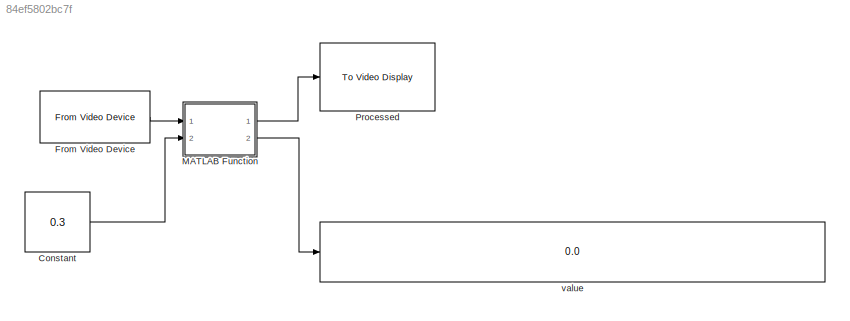
MODEL slx_84ef5802bc7f
KIND model
CONFIG AbsTol = auto
CONFIG FixedStep = auto
CONFIG MaxStep = auto
CONFIG MinStep = auto
CONFIG RelTol = 1e-3
CONFIG SampleTimeConstraint = Unconstrained
CONFIG Solver = VariableStepAuto
CONFIG SolverMode = Auto
CONFIG SolverName = VariableStepAuto
CONFIG StartTime = 0.0
CONFIG StopTime = inf
BLOCK [Constant] Constant
  OutDataTypeStr = double
  SampleTime = 100000
  Value = 0.3
BLOCK [Reference] From Video Device  REF=imaqlib/From Video Device
  Ports = [0, 1]
  SourceBlock = imaqlib/From Video Device
  SourceType = From Video Device
  UserDataPersistent = on
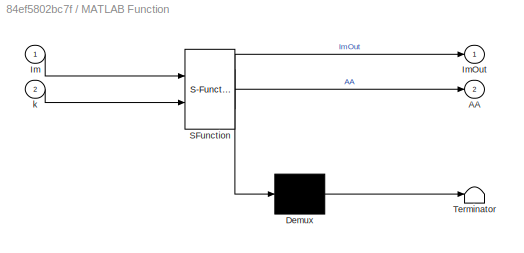
BLOCK [SubSystem] MATLAB Function
  ErrorFcn = Stateflow.Translate.translate
  PermitHierarchicalResolution = ExplicitOnly
  Ports = [2, 2]
  RequestExecContextInheritance = off
  SFBlockType = MATLAB Function
  TreatAsAtomicUnit = on
  Variant = off
BLOCK [Demux] MATLAB Function/ Demux 
  Outputs = 1
  Ports = [1, 1]
BLOCK [S-Function] MATLAB Function/ SFunction 
  EnableBusSupport = on
  FunctionName = sf_sfun
  PortCounts = [2 3]
  Ports = [2, 3]
  SFunctionDeploymentMode = off
  Tag = Stateflow S-Function BoundingBoxWidthtoHeightRatio 2
BLOCK [Terminator] MATLAB Function/ Terminator 
BLOCK [Outport] MATLAB Function/AA
  IconDisplay = Port number
  Port = 2
BLOCK [Inport] MATLAB Function/Im
  IconDisplay = Port number
BLOCK [Outport] MATLAB Function/ImOut
  IconDisplay = Port number
BLOCK [Inport] MATLAB Function/k
  IconDisplay = Port number
  Port = 2
BLOCK [Reference] Processed  REF=visionsinks/To Video Display
  Ports = [1]
  SourceBlock = visionsinks/To Video Display
  SourceType = To Video Display
BLOCK [Display] value
  Decimation = 1
  Format = long
  Ports = [1]
LINE Constant:1 -> MATLAB Function:2
LINE From Video Device:1 -> MATLAB Function:1
LINE MATLAB Function:1 -> Processed:1
LINE MATLAB Function:2 -> value:1
CHART MATLAB Function states=1 transitions=1
  STATE_LABEL 'eML_blk_kernel()'
  STATE_LABEL "SCRIPT:\nfunction [ImOut,AA] = fcn(Im,k)\nI=rgb2gray(Im);\ncoder.extrinsic('graythresh');\ncoder.extrinsic('im2bw');\nlevel = graythresh(I);\nBW = im2bw(I,level);\nL=double(I);\ncoder.extrinsic('bwlabeln');\nNUM=1;\nBW2=imcomplement(BW);\n[L, NUM] = bwlabeln(BW2);\narea=1;\nn=1;\nR1=Im(:,:,1);\nR2=Im(:,:,2);\nR3=Im(:,:,3);\nAA=(zeros(50,1));\ni=1;\nfor n=1:NUM\n    [r, c] = find(L==n);\n    %if (max(c)~= min(c))&&(max...<+305ch>"
